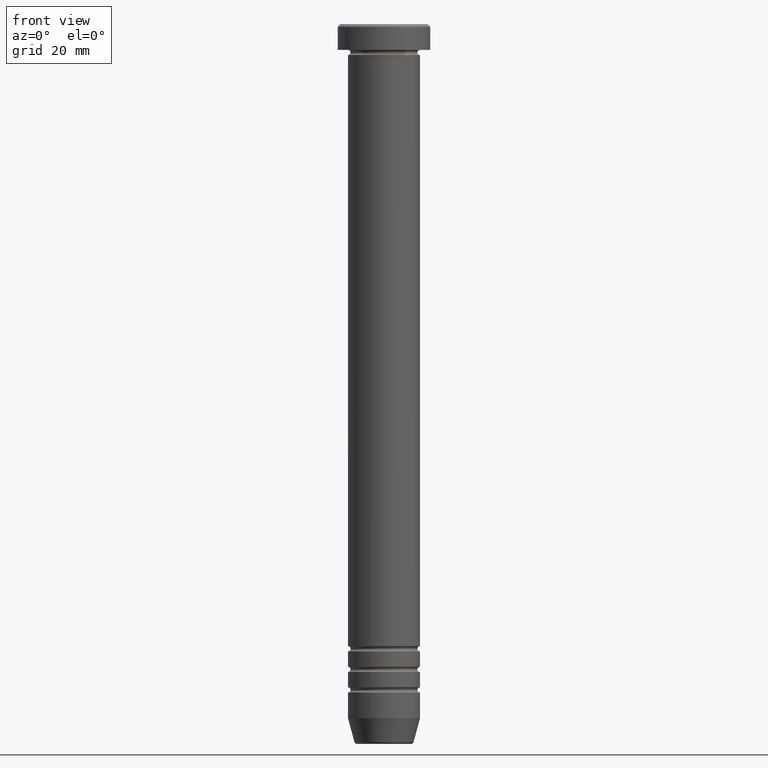
[diagram: clean part render]
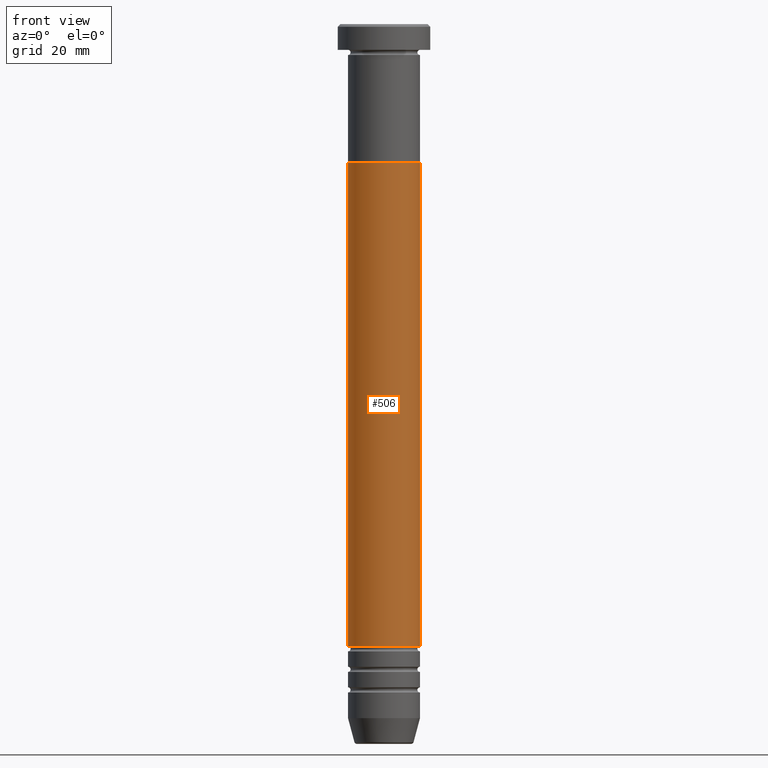
[diagram: same view with one face highlighted and labeled with its STEP entity id]
A machine part, front view. The second image highlights one B-rep face of the part: STEP entity #506.
In plain terms, the highlighted cylindrical surface (edge-blend (fillet) strip) has radius 7 mm, axis along (-0, -0, 1).
Its self-contained STEP definition (entity closure, byte-faithful):
#49 = CARTESIAN_POINT ( 'NONE',  ( 0.000000000000000000, 0.000000000000000000, 0.000000000000000000 ) ) ;
#83 = EDGE_LOOP ( 'NONE', ( #137, #580, #198, #698 ) ) ;
#137 = ORIENTED_EDGE ( 'NONE', *, *, #457, .F. ) ;
#139 = DIRECTION ( 'NONE',  ( 1.000000000000000000, 0.000000000000000000, 0.000000000000000000 ) ) ;
#171 = CARTESIAN_POINT ( 'NONE',  ( -7.000000000000000000, 8.572527594031472204E-16, -27.00000000000000000 ) ) ;
#194 = VERTEX_POINT ( 'NONE', #942 ) ;
#198 = ORIENTED_EDGE ( 'NONE', *, *, #1004, .T. ) ;
#204 = CARTESIAN_POINT ( 'NONE',  ( -6.999999999999996447, 8.572527594031468259E-16, 0.000000000000000000 ) ) ;
#220 = DIRECTION ( 'NONE',  ( 1.000000000000000000, 0.000000000000000000, 0.000000000000000000 ) ) ;
#255 = EDGE_CURVE ( 'NONE', #684, #194, #1054, .T. ) ;
#256 = CARTESIAN_POINT ( 'NONE',  ( 6.999999999999996447, 0.000000000000000000, 0.000000000000000000 ) ) ;
#333 = DIRECTION ( 'NONE',  ( 1.000000000000000000, 0.000000000000000000, 0.000000000000000000 ) ) ;
#344 = LINE ( 'NONE', #204, #503 ) ;
#457 = EDGE_CURVE ( 'NONE', #842, #684, #344, .T. ) ;
#492 = DIRECTION ( 'NONE',  ( -0.000000000000000000, -0.000000000000000000, 1.000000000000000000 ) ) ;
#503 = VECTOR ( 'NONE', #686, 1000.000000000000000 ) ;
#506 = ADVANCED_FACE ( 'NONE', ( #542 ), #791, .T. ) ;
#526 = EDGE_CURVE ( 'NONE', #842, #860, #549, .T. ) ;
#542 = FACE_OUTER_BOUND ( 'NONE', #83, .T. ) ;
#549 = CIRCLE ( 'NONE', #763, 6.999999999999992895 ) ;
#580 = ORIENTED_EDGE ( 'NONE', *, *, #526, .T. ) ;
#591 = LINE ( 'NONE', #256, #1028 ) ;
#655 = DIRECTION ( 'NONE',  ( -0.000000000000000000, -0.000000000000000000, 1.000000000000000000 ) ) ;
#675 = CARTESIAN_POINT ( 'NONE',  ( -6.999999999999992895, 8.572527594031466287E-16, -121.0000000000000000 ) ) ;
#684 = VERTEX_POINT ( 'NONE', #171 ) ;
#686 = DIRECTION ( 'NONE',  ( -0.000000000000000000, -0.000000000000000000, 1.000000000000000000 ) ) ;
#698 = ORIENTED_EDGE ( 'NONE', *, *, #255, .F. ) ;
#702 = CARTESIAN_POINT ( 'NONE',  ( 0.000000000000000000, 0.000000000000000000, -121.0000000000000000 ) ) ;
#723 = CARTESIAN_POINT ( 'NONE',  ( 0.000000000000000000, 0.000000000000000000, -27.00000000000000000 ) ) ;
#739 = CARTESIAN_POINT ( 'NONE',  ( 6.999999999999992895, 0.000000000000000000, -121.0000000000000000 ) ) ;
#762 = AXIS2_PLACEMENT_3D ( 'NONE', #723, #492, #333 ) ;
#763 = AXIS2_PLACEMENT_3D ( 'NONE', #702, #862, #139 ) ;
#791 = CYLINDRICAL_SURFACE ( 'NONE', #939, 6.999999999999996447 ) ;
#842 = VERTEX_POINT ( 'NONE', #675 ) ;
#860 = VERTEX_POINT ( 'NONE', #739 ) ;
#862 = DIRECTION ( 'NONE',  ( -0.000000000000000000, -0.000000000000000000, 1.000000000000000000 ) ) ;
#939 = AXIS2_PLACEMENT_3D ( 'NONE', #49, #961, #220 ) ;
#942 = CARTESIAN_POINT ( 'NONE',  ( 7.000000000000000000, 0.000000000000000000, -27.00000000000000000 ) ) ;
#961 = DIRECTION ( 'NONE',  ( -0.000000000000000000, -0.000000000000000000, 1.000000000000000000 ) ) ;
#1004 = EDGE_CURVE ( 'NONE', #860, #194, #591, .T. ) ;
#1028 = VECTOR ( 'NONE', #655, 1000.000000000000000 ) ;
#1054 = CIRCLE ( 'NONE', #762, 7.000000000000000000 ) ;